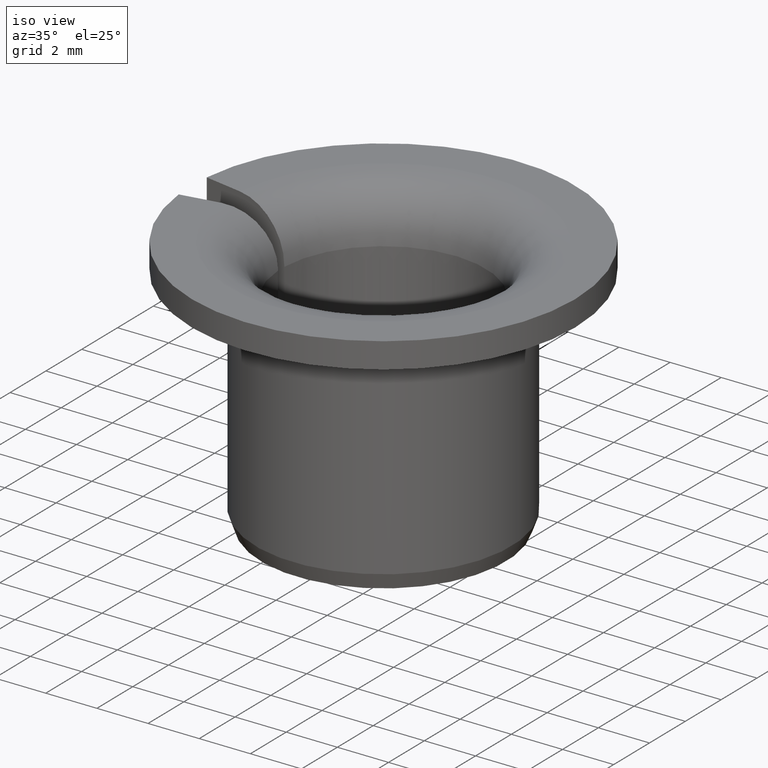
[diagram: clean part render]
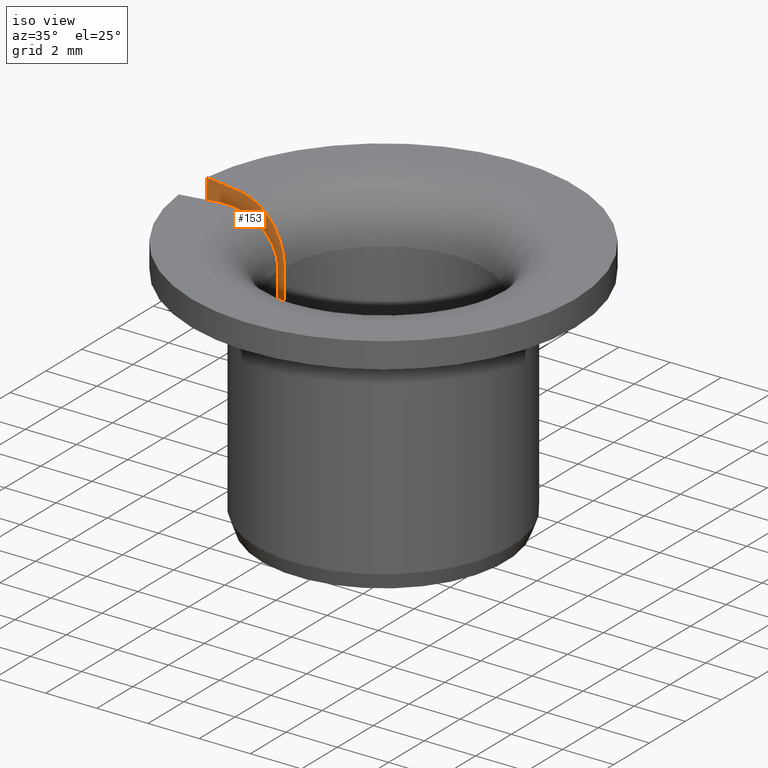
[diagram: same view with one face highlighted and labeled with its STEP entity id]
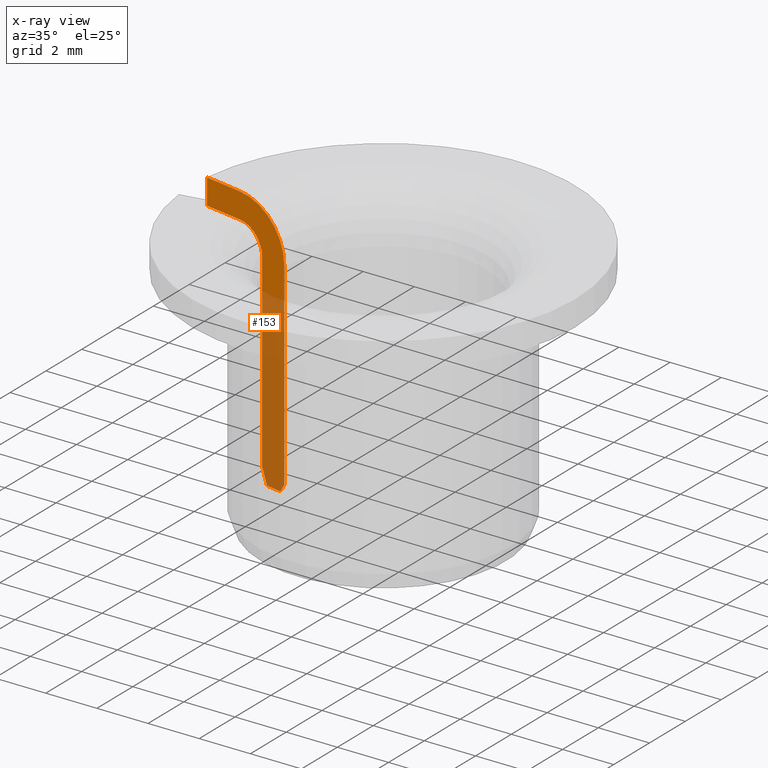
[diagram: x-ray of the same camera — body ghosted, the highlighted face saturated]
A machine part, iso view. The second image highlights one B-rep face of the part: STEP entity #153.
The next image is the same camera in x-ray: the body ghosted, the highlighted face saturated — about 57% of this face is hidden behind the body in this view.
In plain terms, the highlighted planar face has unit normal (0.1736, 0.9848, -0).
Its self-contained STEP definition (entity closure, byte-faithful):
#153=ADVANCED_FACE('',(#167),#168,.F.);
#167=FACE_OUTER_BOUND('',#192,.T.);
#168=PLANE('',#193);
#192=EDGE_LOOP('',(#216,#217,#218,#219,#220,#221,#222,#223,#224,#225));
#193=AXIS2_PLACEMENT_3D('',#226,#227,#228);
#216=ORIENTED_EDGE('',*,*,#312,.T.);
#217=ORIENTED_EDGE('',*,*,#313,.F.);
#218=ORIENTED_EDGE('',*,*,#314,.T.);
#219=ORIENTED_EDGE('',*,*,#315,.T.);
#220=ORIENTED_EDGE('',*,*,#316,.T.);
#221=ORIENTED_EDGE('',*,*,#317,.T.);
#222=ORIENTED_EDGE('',*,*,#318,.T.);
#223=ORIENTED_EDGE('',*,*,#319,.F.);
#224=ORIENTED_EDGE('',*,*,#320,.T.);
#225=ORIENTED_EDGE('',*,*,#321,.T.);
#226=CARTESIAN_POINT('',(-0.00770955855681633,0.00188838412504393,0.0));
#227=DIRECTION('',(-0.173648177666931,-0.984807753012208,-0.0));
#228=DIRECTION('',(0.0,0.0,-1.0));
#312=EDGE_CURVE('',#342,#343,#344,.T.);
#313=EDGE_CURVE('',#345,#343,#346,.T.);
#314=EDGE_CURVE('',#345,#347,#348,.T.);
#315=EDGE_CURVE('',#347,#349,#350,.T.);
#316=EDGE_CURVE('',#349,#351,#352,.T.);
#317=EDGE_CURVE('',#351,#353,#354,.T.);
#318=EDGE_CURVE('',#353,#355,#356,.T.);
#319=EDGE_CURVE('',#357,#355,#358,.T.);
#320=EDGE_CURVE('',#357,#359,#360,.T.);
#321=EDGE_CURVE('',#359,#342,#361,.F.);
#342=VERTEX_POINT('',#392);
#343=VERTEX_POINT('',#393);
#344=B_SPLINE_CURVE_WITH_KNOTS('',3,(#394,#395,#396,#397,#398,#399,#400,#401,#402,#403,#404,#405,#406,#407),.UNSPECIFIED.,.F.,.F.,(4,2,2,2,2,2,4),(1.97149807994491E-007,0.000391813408886946,0.000783429667965897,0.00117504592704485,0.0015666621861238,0.0023498947042817,0.0031331272224396),.UNSPECIFIED.);
#345=VERTEX_POINT('',#408);
#346=LINE('',#409,#410);
#347=VERTEX_POINT('',#411);
#348=LINE('',#412,#413);
#349=VERTEX_POINT('',#414);
#350=LINE('',#415,#416);
#351=VERTEX_POINT('',#417);
#352=B_SPLINE_CURVE_WITH_KNOTS('',3,(#418,#419,#420,#421,#422,#423,#424,#425,#426,#427),.UNSPECIFIED.,.F.,.F.,(4,2,2,2,4),(2.32761584607259E-005,0.000414745925110807,0.000806215691760888,0.00119768545841097,0.00158915522506105),.UNSPECIFIED.);
#353=VERTEX_POINT('',#428);
#354=LINE('',#429,#430);
#355=VERTEX_POINT('',#431);
#356=B_SPLINE_CURVE_WITH_KNOTS('',3,(#432,#433,#434,#435),.UNSPECIFIED.,.F.,.F.,(4,4),(2.1297212369688E-007,0.000639148274514943),.UNSPECIFIED.);
#357=VERTEX_POINT('',#436);
#358=LINE('',#437,#438);
#359=VERTEX_POINT('',#439);
#360=B_SPLINE_CURVE_WITH_KNOTS('',3,(#440,#441,#442,#443),.UNSPECIFIED.,.F.,.F.,(4,4),(2.31396596338608E-007,0.000347356429367464),.UNSPECIFIED.);
#361=LINE('',#444,#445);
#392=CARTESIAN_POINT('',(0.00399614167081564,-0.000175646653172807,0.008));
#393=CARTESIAN_POINT('',(0.00597699376410577,-0.000524924322012699,0.01));
#394=CARTESIAN_POINT('',(0.00399614167081564,-0.000175646653172807,0.008));
#395=CARTESIAN_POINT('',(0.00399614167081564,-0.000175646653172807,0.00813242481063123));
#396=CARTESIAN_POINT('',(0.00400907724692834,-0.000177927544252484,0.008262608733413));
#397=CARTESIAN_POINT('',(0.00405972542786284,-0.000186858185075042,0.00851868434320013));
#398=CARTESIAN_POINT('',(0.0040980676884675,-0.000193618960120999,0.00864592022676375));
#399=CARTESIAN_POINT('',(0.00419795895644903,-0.000211232485803322,0.00888823095302388));
#400=CARTESIAN_POINT('',(0.004259046812882,-0.000222003923086099,0.00900311852484196));
#401=CARTESIAN_POINT('',(0.00440325719422358,-0.000247432104214877,0.00922049859161173));
#402=CARTESIAN_POINT('',(0.00448703527510573,-0.000262204440266377,0.00932324735045404));
#403=CARTESIAN_POINT('',(0.00476124120870576,-0.000310554344630415,0.00959945096658651));
#404=CARTESIAN_POINT('',(0.00498192933162646,-0.00034946761502324,0.00974807779660636));
#405=CARTESIAN_POINT('',(0.00545731236079945,-0.000433290469237357,0.00994714234040244));
#406=CARTESIAN_POINT('',(0.00571655113836875,-0.000479001260168707,0.01));
#407=CARTESIAN_POINT('',(0.00597699376410577,-0.0005249243220127,0.01));
#408=CARTESIAN_POINT('',(0.00745868032167406,-0.000786185639065035,0.01));
#409=CARTESIAN_POINT('',(0.00989365427108545,-0.00121553724366851,0.01));
#410=VECTOR('',#510,1.0);
#411=CARTESIAN_POINT('',(0.00745868032167406,-0.000786185639065034,0.009));
#412=CARTESIAN_POINT('',(0.00745868032167406,-0.000786185639065034,7.9554026853408E-020));
#413=VECTOR('',#511,1.0);
#414=CARTESIAN_POINT('',(0.00597699376410579,-0.000524924322012701,0.009));
#415=CARTESIAN_POINT('',(0.00590953893117886,-0.000513030214988502,0.009));
#416=VECTOR('',#512,1.0);
#417=CARTESIAN_POINT('',(0.00498770087899306,-0.000350485294544406,0.008));
#418=CARTESIAN_POINT('',(0.00597699376410579,-0.000524924322012703,0.009));
#419=CARTESIAN_POINT('',(0.00584711842756404,-0.000502023796051801,0.009));
#420=CARTESIAN_POINT('',(0.00571862013906268,-0.000479366080814151,0.00897403826328285));
#421=CARTESIAN_POINT('',(0.00547993772722357,-0.000437279931786347,0.00887429083842926));
#422=CARTESIAN_POINT('',(0.00536996502046796,-0.000417888776443792,0.00880013058665907));
#423=CARTESIAN_POINT('',(0.00518738883395465,-0.000385695668726633,0.00861618594293438));
#424=CARTESIAN_POINT('',(0.00511333951486583,-0.000372638775868185,0.00850467208311291));
#425=CARTESIAN_POINT('',(0.00501411993121606,-0.000355143686256071,0.00826390958854768));
#426=CARTESIAN_POINT('',(0.00498770087898896,-0.000350485294543686,0.00813238072525078));
#427=CARTESIAN_POINT('',(0.00498770087898889,-0.000350485294543674,0.00800000000000051));
#428=CARTESIAN_POINT('',(0.00498770087899306,-0.000350485294544407,0.0006));
#429=CARTESIAN_POINT('',(0.00498770087899306,-0.000350485294544407,5.28750752381787E-020));
#430=VECTOR('',#513,1.0);
#431=CARTESIAN_POINT('',(0.00477140534669062,-0.000312346556392789,6.43083039248804E-019));
#432=CARTESIAN_POINT('',(0.00498770087899306,-0.000350485294544409,0.000600000000000001));
#433=CARTESIAN_POINT('',(0.00491561830649228,-0.000337775192173647,0.000399994076477626));
#434=CARTESIAN_POINT('',(0.00484352053067909,-0.000325062409048712,0.000199993801739418));
#435=CARTESIAN_POINT('',(0.00477140534669062,-0.000312346556392789,1.3356719611959E-018));
#436=CARTESIAN_POINT('',(0.00416811907584122,-0.000205970909751045,6.43083039248804E-019));
#437=CARTESIAN_POINT('',(0.003,0.0,6.43083039248804E-019));
#438=VECTOR('',#514,1.0);
#439=CARTESIAN_POINT('',(0.00399614167081564,-0.000175646653172807,0.0003));
#440=CARTESIAN_POINT('',(0.00416811907584122,-0.000205970909751045,-1.54990875806966E-018));
#441=CARTESIAN_POINT('',(0.00411080795546129,-0.000195865412933433,0.000100008676351467));
#442=CARTESIAN_POINT('',(0.00405348279616506,-0.000185757440676097,0.000200009059158184));
#443=CARTESIAN_POINT('',(0.00399614167081564,-0.000175646653172808,0.000299999999999999));
#444=CARTESIAN_POINT('',(0.00399614167081564,-0.000175646653172807,4.21692961120287E-020));
#445=VECTOR('',#515,1.0);
#510=DIRECTION('',(-0.984807753012208,0.173648177666931,0.0));
#511=DIRECTION('',(0.0,-6.12323399573677E-017,-1.0));
#512=DIRECTION('',(-0.984807753012208,0.173648177666931,-1.06328842478789E-017));
#513=DIRECTION('',(0.0,-6.12323399573677E-017,-1.0));
#514=DIRECTION('',(0.984807753012208,-0.173648177666931,0.0));
#515=DIRECTION('',(0.0,-6.12323399573677E-017,-1.0));